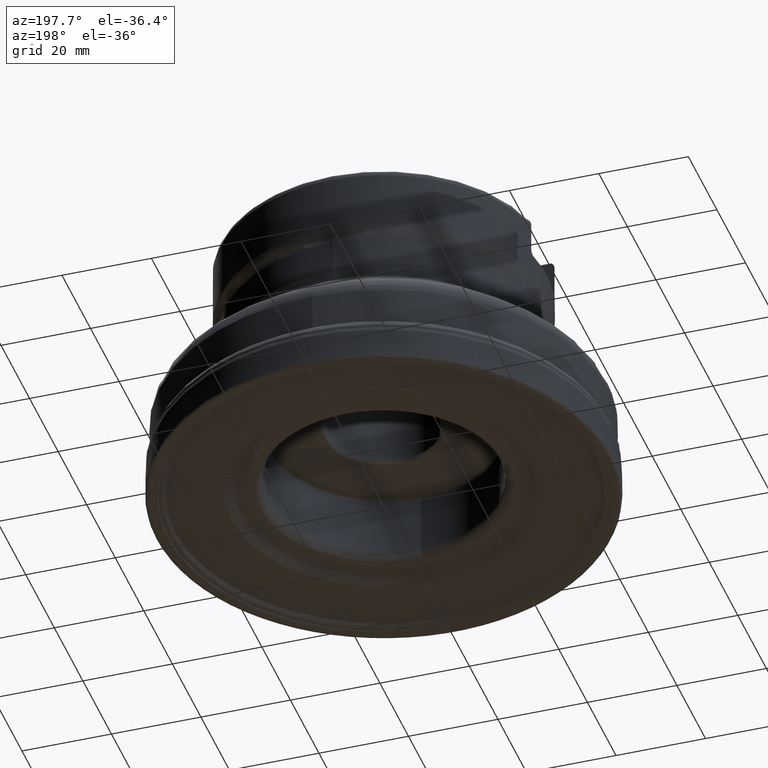
[diagram: clean part render]
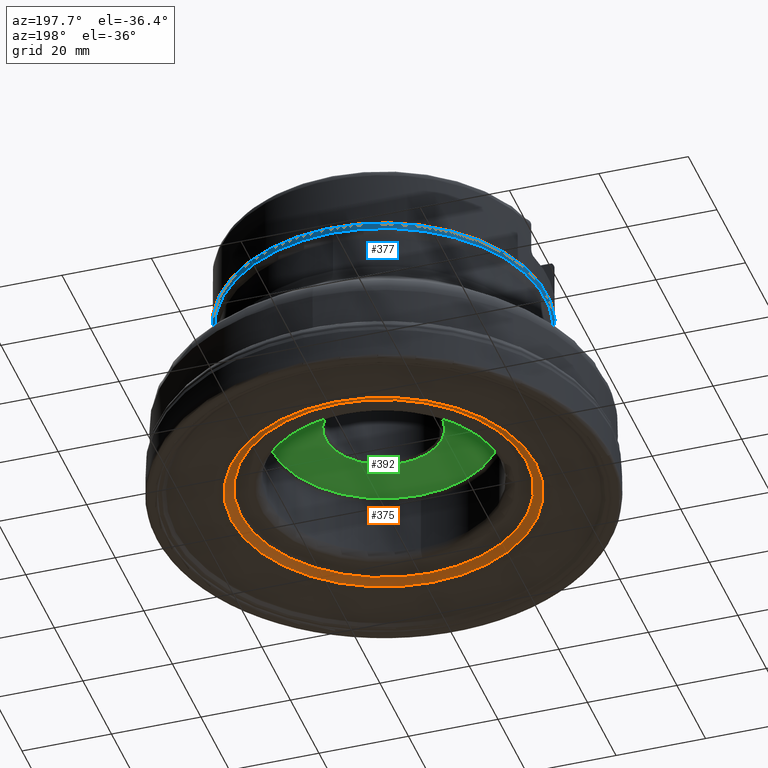
[diagram: same view with three faces highlighted in distinct colors, each labeled with its STEP entity id]
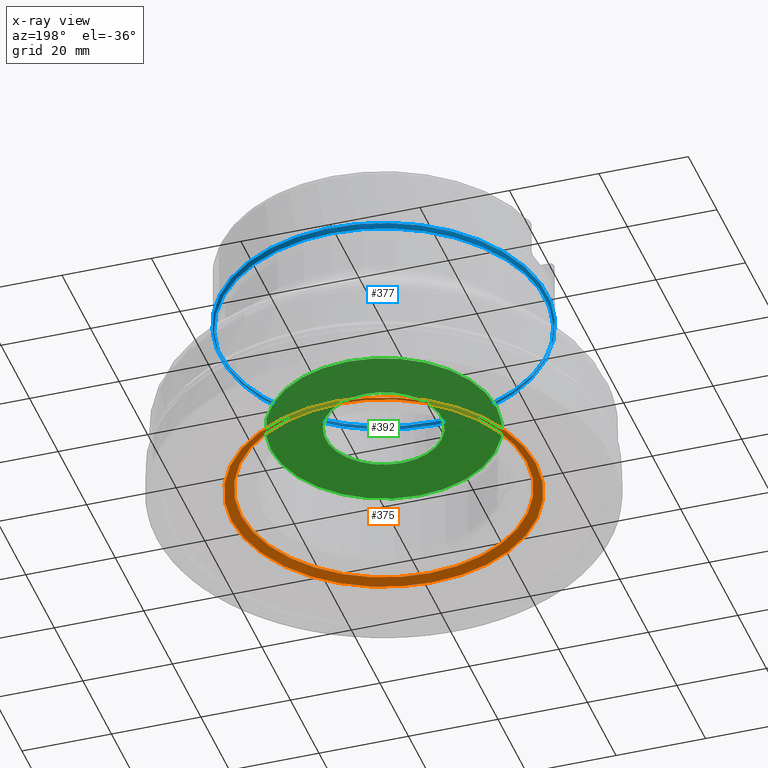
[diagram: x-ray of the same camera — body ghosted, the three highlighted faces saturated]
A machine part, auxiliary view with three faces highlighted in distinct colors.
The next image is the same camera in x-ray (body ghosted, the three faces saturated) — at least one of them is partly hidden behind the body in this view.
Their STEP definitions:

[orange] entity #375 — the highlighted conical surface has half-angle 65 deg.
#180=FACE_BOUND('',#494,.T.);
#181=FACE_BOUND('',#495,.T.);
#280=CONICAL_SURFACE('',#1236,35.,65.);
#375=ADVANCED_FACE('',(#180,#181),#280,.F.);
#494=EDGE_LOOP('',(#734));
#495=EDGE_LOOP('',(#735));
#625=CIRCLE('',#1234,31.9300548465206);
#626=CIRCLE('',#1235,33.9953820045112);
#734=ORIENTED_EDGE('',*,*,#1059,.T.);
#735=ORIENTED_EDGE('',*,*,#1060,.T.);
#952=VERTEX_POINT('',#2093);
#953=VERTEX_POINT('',#2095);
#1059=EDGE_CURVE('',#952,#952,#625,.T.);
#1060=EDGE_CURVE('',#953,#953,#626,.T.);
#1234=AXIS2_PLACEMENT_3D('',#2092,#1410,#1411);
#1235=AXIS2_PLACEMENT_3D('',#2094,#1412,#1413);
#1236=AXIS2_PLACEMENT_3D('',#2096,#1414,#1415);
#1410=DIRECTION('',(0.,1.17145536458252E-15,1.));
#1411=DIRECTION('',(0.,1.,-1.16807048759472E-15));
#1412=DIRECTION('',(0.,-1.17145536458252E-15,-1.));
#1413=DIRECTION('',(0.,-1.,1.17364881918879E-15));
#1414=DIRECTION('',(0.,-1.17145536458252E-15,-1.));
#1415=DIRECTION('',(0.,1.,-1.17816759430813E-15));
#2092=CARTESIAN_POINT('',(0.,2.96558486626995E-15,2.53153893518325));
#2093=CARTESIAN_POINT('',(0.,31.9300548465206,2.53153893518321));
#2094=CARTESIAN_POINT('',(0.,1.83738212851841E-15,1.56846106481676));
#2095=CARTESIAN_POINT('',(0.,-33.9953820045112,1.5684610648168));
#2096=CARTESIAN_POINT('',(0.,1.28860090104078E-15,1.1));

[blue] entity #377 — the highlighted toroidal blend (fillet) surface has major radius 34.5 mm and minor (blend) radius 2 mm.
#184=FACE_BOUND('',#498,.T.);
#185=FACE_BOUND('',#499,.T.);
#377=ADVANCED_FACE('',(#184,#185),#439,.T.);
#439=TOROIDAL_SURFACE('',#1241,34.5,2.);
#498=EDGE_LOOP('',(#738));
#499=EDGE_LOOP('',(#739));
#612=CIRCLE('',#1215,36.5);
#629=CIRCLE('',#1240,36.1363636363636);
#738=ORIENTED_EDGE('',*,*,#1063,.T.);
#739=ORIENTED_EDGE('',*,*,#1038,.F.);
#933=VERTEX_POINT('',#1987);
#956=VERTEX_POINT('',#2103);
#1038=EDGE_CURVE('',#933,#933,#612,.T.);
#1063=EDGE_CURVE('',#956,#956,#629,.T.);
#1215=AXIS2_PLACEMENT_3D('',#1986,#1368,#1369);
#1240=AXIS2_PLACEMENT_3D('',#2102,#1422,#1423);
#1241=AXIS2_PLACEMENT_3D('',#2104,#1424,#1425);
#1368=DIRECTION('',(0.,1.17145536458252E-15,1.));
#1369=DIRECTION('',(0.,-1.,1.14064009379297E-15));
#1422=DIRECTION('',(0.,1.17145536458252E-15,1.));
#1423=DIRECTION('',(0.,-1.,1.15211823310158E-15));
#1424=DIRECTION('',(0.,1.17145536458252E-15,1.));
#1425=DIRECTION('',(0.,-1.,1.14064009379297E-15));
#1986=CARTESIAN_POINT('',(0.,5.37152431897777E-14,45.8534271247462));
#1987=CARTESIAN_POINT('',(0.,-36.4999999999999,45.8534271247462));
#2102=CARTESIAN_POINT('',(0.,5.23681642336673E-14,44.7035079755941));
#2103=CARTESIAN_POINT('',(0.,-36.1363636363636,44.7035079755941));
#2104=CARTESIAN_POINT('',(0.,5.37152431897777E-14,45.8534271247462));

[green] entity #392 — the highlighted planar face has unit normal (0, 0, 1).
#190=FACE_BOUND('',#516,.T.);
#191=FACE_BOUND('',#517,.T.);
#298=PLANE('',#1265);
#392=ADVANCED_FACE('',(#190,#191),#298,.F.);
#516=EDGE_LOOP('',(#815));
#517=EDGE_LOOP('',(#816));
#637=CIRCLE('',#1263,13.);
#638=CIRCLE('',#1264,25.2);
#815=ORIENTED_EDGE('',*,*,#1091,.T.);
#816=ORIENTED_EDGE('',*,*,#1092,.T.);
#972=VERTEX_POINT('',#2252);
#973=VERTEX_POINT('',#2254);
#1091=EDGE_CURVE('',#972,#972,#637,.T.);
#1092=EDGE_CURVE('',#973,#973,#638,.T.);
#1263=AXIS2_PLACEMENT_3D('',#2251,#1480,#1481);
#1264=AXIS2_PLACEMENT_3D('',#2253,#1482,#1483);
#1265=AXIS2_PLACEMENT_3D('',#2255,#1484,#1485);
#1480=DIRECTION('',(4.47319432837584E-16,1.56003342320133E-15,1.));
#1481=DIRECTION('',(1.08268785724004E-15,-1.,1.60128320859398E-15));
#1482=DIRECTION('',(-4.47319432837584E-16,-1.56003342320133E-15,-1.));
#1483=DIRECTION('',(1.08268785724004E-15,-1.,1.51444112982102E-15));
#1484=DIRECTION('',(4.47319432837584E-16,1.56003342320133E-15,1.));
#1485=DIRECTION('',(1.08246744900953E-15,-1.,1.56125112837913E-15));
#2251=CARTESIAN_POINT('',(8.23112488364439E-15,2.87061750203276E-14,18.401));
#2252=CARTESIAN_POINT('',(2.23060670277649E-14,-13.,18.401));
#2253=CARTESIAN_POINT('',(8.23112488364439E-15,2.87061750203276E-14,18.401));
#2254=CARTESIAN_POINT('',(3.55148588860935E-14,-25.2,18.401));
#2255=CARTESIAN_POINT('',(-26.,5.56290732086527E-16,18.401));